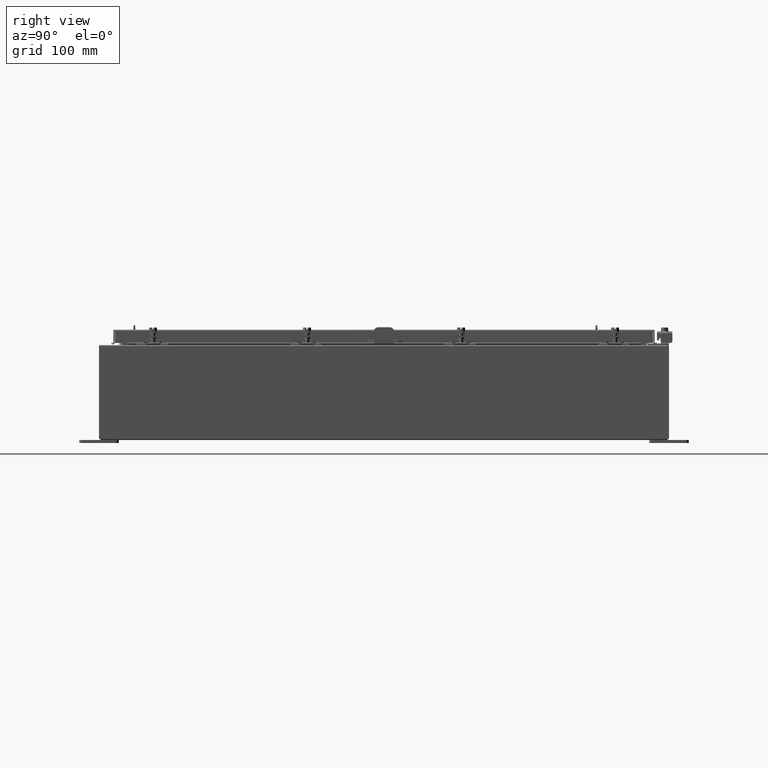
[diagram: clean part render]
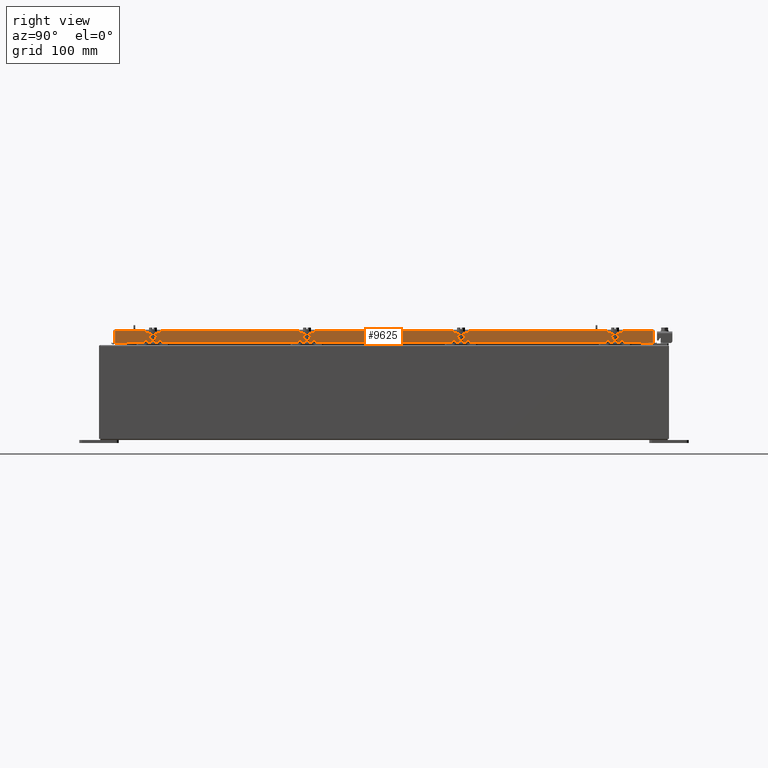
[diagram: same view with one face highlighted and labeled with its STEP entity id]
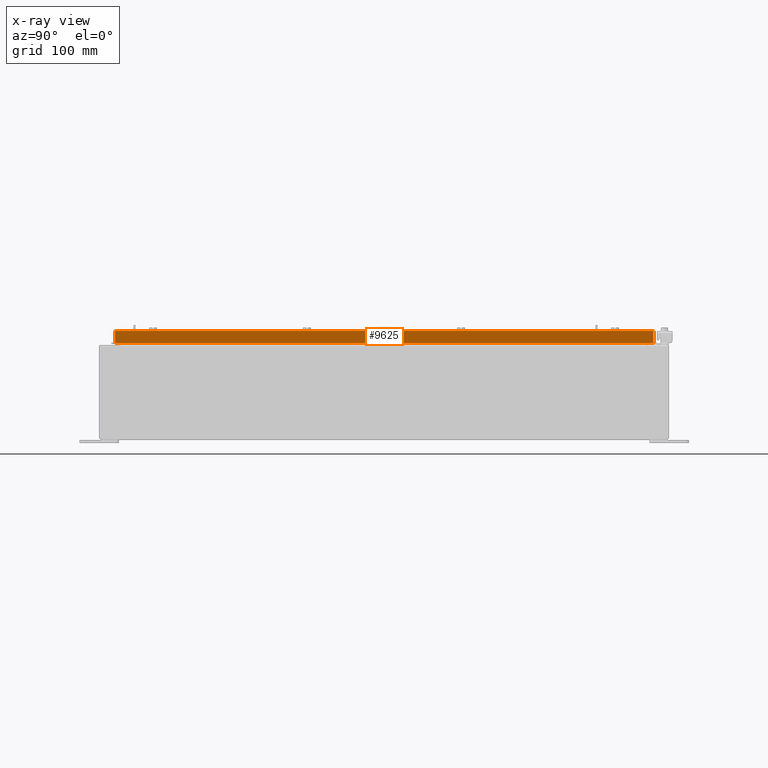
[diagram: x-ray of the same camera — body ghosted, the highlighted face saturated]
A machine part, right view. The second image highlights one B-rep face of the part: STEP entity #9625.
The next image is the same camera in x-ray: the body ghosted, the highlighted face saturated — about 0% of this face is hidden behind the body in this view.
In plain terms, the highlighted planar face has unit normal (1, 0, 0).
Its self-contained STEP definition (entity closure, byte-faithful):
#1975 = EDGE_CURVE ( 'NONE', #16483, #19203, #3111, .T. ) ;
#2411 = CARTESIAN_POINT ( 'NONE',  ( 11.07799999999999800, -17.00515786437626900, -0.07469999999999978000 ) ) ;
#2483 = DIRECTION ( 'NONE',  ( -2.818880942772360500E-015, -6.982962677686269100E-015, 1.000000000000000000 ) ) ;
#2876 = ORIENTED_EDGE ( 'NONE', *, *, #11958, .T. ) ;
#3111 = LINE ( 'NONE', #20856, #17420 ) ;
#3295 = CARTESIAN_POINT ( 'NONE',  ( 11.07799999999999900, -17.09400000000000100, -0.8499999999999996400 ) ) ;
#3296 = CARTESIAN_POINT ( 'NONE',  ( 11.07799999999999800, 17.00515786437626900, 1.502347594351463900E-013 ) ) ;
#4114 = LINE ( 'NONE', #14128, #7778 ) ;
#5406 = CARTESIAN_POINT ( 'NONE',  ( 11.07799999999999900, -17.09400000000000100, -0.8499999999999996400 ) ) ;
#5424 = VECTOR ( 'NONE', #23046, 39.37007874015748100 ) ;
#5530 = VECTOR ( 'NONE', #10820, 39.37007874015748100 ) ;
#6152 = EDGE_CURVE ( 'NONE', #14694, #16483, #11539, .T. ) ;
#6947 = ORIENTED_EDGE ( 'NONE', *, *, #22280, .T. ) ;
#7099 = DIRECTION ( 'NONE',  ( 2.818880942772360100E-015, 0.0000000000000000000, -1.000000000000000000 ) ) ;
#7778 = VECTOR ( 'NONE', #21201, 39.37007874015748100 ) ;
#8106 = ORIENTED_EDGE ( 'NONE', *, *, #22421, .F. ) ;
#8725 = CARTESIAN_POINT ( 'NONE',  ( 11.07799999999999900, -17.00515786437626500, -0.8499999999999996400 ) ) ;
#9625 = ADVANCED_FACE ( 'NONE', ( #22867 ), #16000, .T. ) ;
#9683 = ORIENTED_EDGE ( 'NONE', *, *, #10002, .F. ) ;
#10002 = EDGE_CURVE ( 'NONE', #18627, #13460, #12519, .T. ) ;
#10820 = DIRECTION ( 'NONE',  ( 0.0000000000000000000, -1.000000000000000000, 0.0000000000000000000 ) ) ;
#10858 = LINE ( 'NONE', #5406, #5530 ) ;
#10972 = VECTOR ( 'NONE', #21303, 39.37007874015748100 ) ;
#11353 = ORIENTED_EDGE ( 'NONE', *, *, #1975, .F. ) ;
#11539 = LINE ( 'NONE', #3295, #10972 ) ;
#11958 = EDGE_CURVE ( 'NONE', #14694, #13141, #14952, .T. ) ;
#12519 = LINE ( 'NONE', #2411, #21437 ) ;
#13141 = VERTEX_POINT ( 'NONE', #14331 ) ;
#13460 = VERTEX_POINT ( 'NONE', #18589 ) ;
#13608 = CARTESIAN_POINT ( 'NONE',  ( 11.07799999999999200, 16.25515786437627200, -0.8500000000000020900 ) ) ;
#14128 = CARTESIAN_POINT ( 'NONE',  ( 11.07799999999999800, 5.606249421889436000E-018, -0.08770000000000115200 ) ) ;
#14331 = CARTESIAN_POINT ( 'NONE',  ( 11.07799999999999800, 17.00515786437626500, -0.08770000000000115200 ) ) ;
#14694 = VERTEX_POINT ( 'NONE', #16805 ) ;
#14952 = LINE ( 'NONE', #3296, #5424 ) ;
#15903 = ORIENTED_EDGE ( 'NONE', *, *, #6152, .F. ) ;
#16000 = PLANE ( 'NONE',  #17306 ) ;
#16483 = VERTEX_POINT ( 'NONE', #13608 ) ;
#16805 = CARTESIAN_POINT ( 'NONE',  ( 11.07799999999999900, 17.00515786437627600, -0.8499999999999996400 ) ) ;
#17306 = AXIS2_PLACEMENT_3D ( 'NONE', #23133, #17806, #7099 ) ;
#17420 = VECTOR ( 'NONE', #19398, 39.37007874015748100 ) ;
#17684 = EDGE_LOOP ( 'NONE', ( #9683, #8106, #11353, #15903, #2876, #6947 ) ) ;
#17806 = DIRECTION ( 'NONE',  ( 1.000000000000000000, 0.0000000000000000000, 2.818880942772360100E-015 ) ) ;
#18589 = CARTESIAN_POINT ( 'NONE',  ( 11.07799999999999800, -17.00515786437626900, -0.08770000000000224800 ) ) ;
#18627 = VERTEX_POINT ( 'NONE', #8725 ) ;
#18929 = CARTESIAN_POINT ( 'NONE',  ( 11.07799999999999200, -16.25515786437626500, -0.8500000000000020900 ) ) ;
#19203 = VERTEX_POINT ( 'NONE', #18929 ) ;
#19398 = DIRECTION ( 'NONE',  ( 0.0000000000000000000, -1.000000000000000000, 0.0000000000000000000 ) ) ;
#20856 = CARTESIAN_POINT ( 'NONE',  ( 11.07799999999999200, 16.25515786437627200, -0.8500000000000020900 ) ) ;
#21201 = DIRECTION ( 'NONE',  ( 1.801978295984813200E-031, -1.000000000000000000, -6.392530697705073700E-017 ) ) ;
#21303 = DIRECTION ( 'NONE',  ( 0.0000000000000000000, -1.000000000000000000, 0.0000000000000000000 ) ) ;
#21437 = VECTOR ( 'NONE', #2483, 39.37007874015748100 ) ;
#22280 = EDGE_CURVE ( 'NONE', #13141, #13460, #4114, .T. ) ;
#22421 = EDGE_CURVE ( 'NONE', #19203, #18627, #10858, .T. ) ;
#22867 = FACE_OUTER_BOUND ( 'NONE', #17684, .T. ) ;
#23046 = DIRECTION ( 'NONE',  ( -2.818880942772360500E-015, -6.982962677686269100E-015, 1.000000000000000000 ) ) ;
#23133 = CARTESIAN_POINT ( 'NONE',  ( 11.07799999999999800, 0.0000000000000000000, 3.148837674004378400E-014 ) ) ;